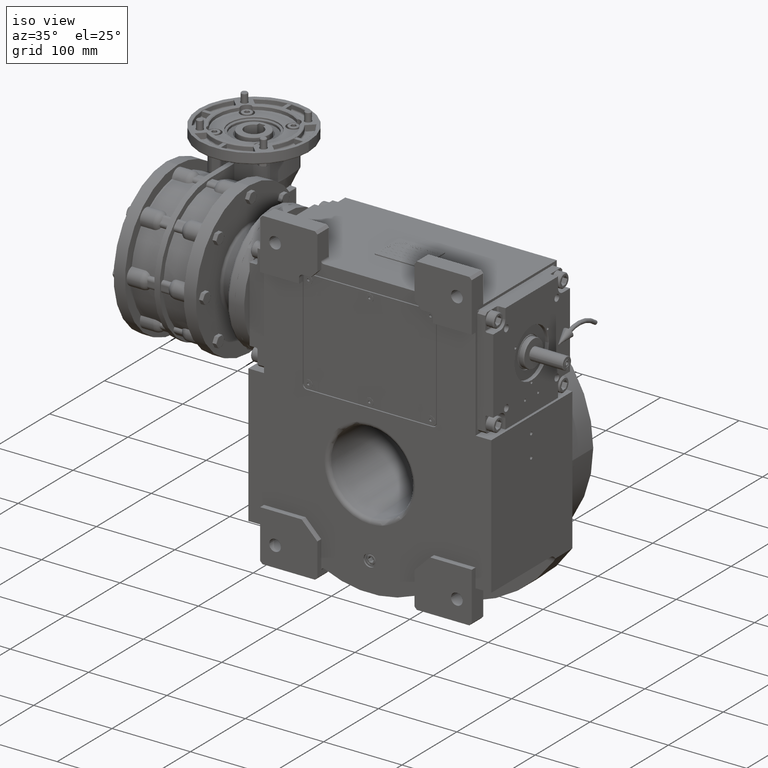
[diagram: clean part render]
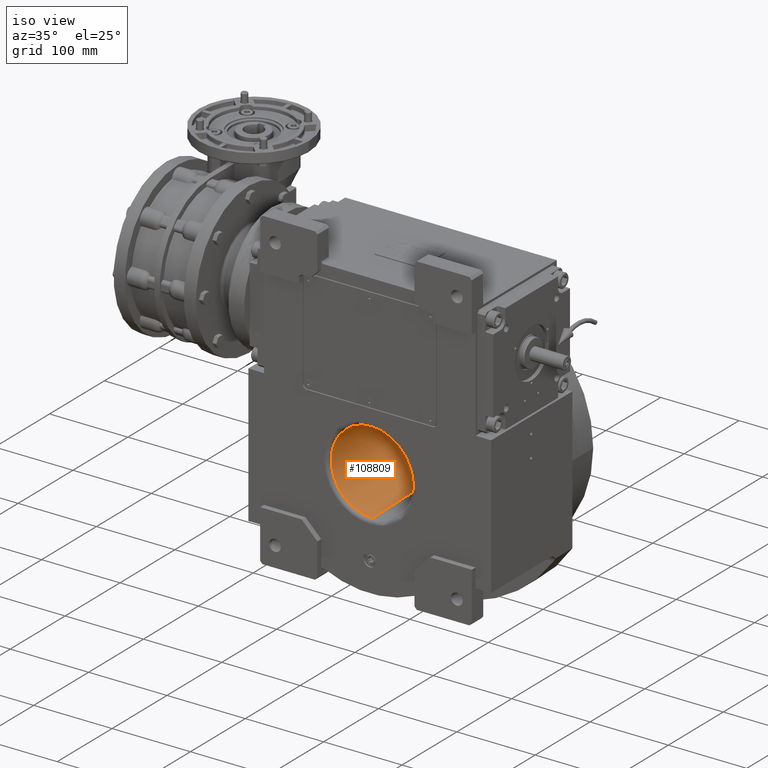
[diagram: same view with one face highlighted and labeled with its STEP entity id]
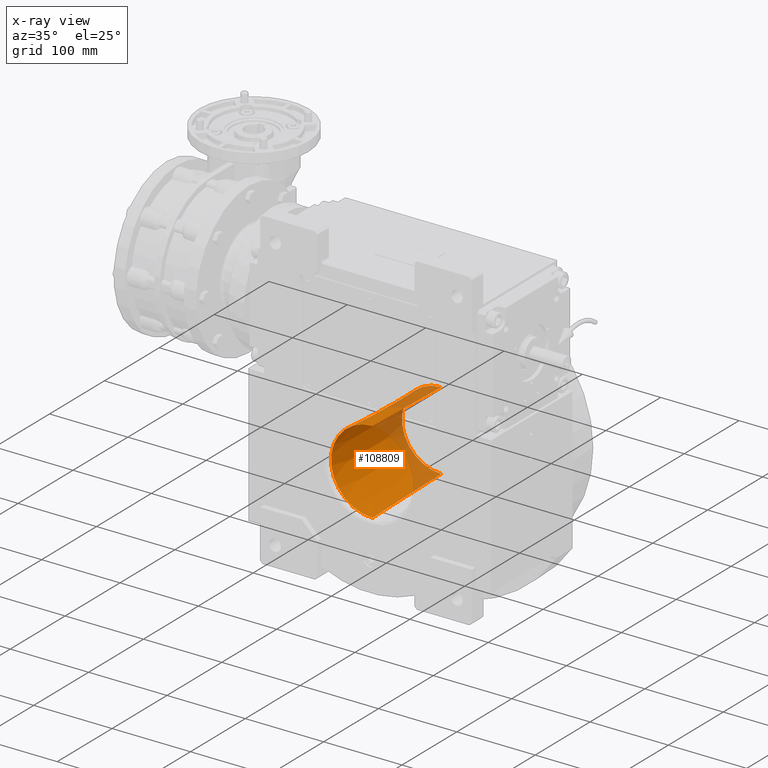
[diagram: x-ray of the same camera — body ghosted, the highlighted face saturated]
A machine part, iso view. The second image highlights one B-rep face of the part: STEP entity #108809.
The next image is the same camera in x-ray: the body ghosted, the highlighted face saturated — about 23% of this face is hidden behind the body in this view.
In plain terms, the highlighted conical surface has half-angle 1.292 deg.
Its self-contained STEP definition (entity closure, byte-faithful):
#3825 = DIRECTION ( 'NONE',  ( 5.523317474363207377E-18, 0.9997457016474147196, -0.02255065492437819882 ) ) ;
#8324 = EDGE_CURVE ( 'NONE', #94442, #89392, #13742, .T. ) ;
#13065 = VERTEX_POINT ( 'NONE', #97694 ) ;
#13742 = LINE ( 'NONE', #39963, #91871 ) ;
#16961 = ORIENTED_EDGE ( 'NONE', *, *, #8324, .F. ) ;
#20529 = DIRECTION ( 'NONE',  ( 0.000000000000000000, -1.000000000000000000, 1.836909530733564901E-16 ) ) ;
#23363 = VERTEX_POINT ( 'NONE', #104101 ) ;
#24548 = CIRCLE ( 'NONE', #113803, 52.88976140256119152 ) ;
#26067 = CARTESIAN_POINT ( 'NONE',  ( -3.366447261396295104E-11, -68.11275327462200835, 52.88976135205919604 ) ) ;
#28342 = VECTOR ( 'NONE', #31408, 1000.000000000000114 ) ;
#31408 = DIRECTION ( 'NONE',  ( -2.761658737181604074E-18, 0.9997457016474147196, 0.02255065492437784494 ) ) ;
#38424 = CARTESIAN_POINT ( 'NONE',  ( -5.647091595521470526E-12, 57.06765196477320501, 50.06614318876450653 ) ) ;
#38840 = DIRECTION ( 'NONE',  ( 1.997138262492154581E-08, 0.9999999999999997780, 6.123233971614108296E-17 ) ) ;
#39963 = CARTESIAN_POINT ( 'NONE',  ( -1.295425538949331941E-14, -68.11275327462179519, 52.88976135205919604 ) ) ;
#40750 = CARTESIAN_POINT ( 'NONE',  ( 6.477127694746659705E-15, -68.11275327462179519, -52.88976135205919604 ) ) ;
#42199 = EDGE_CURVE ( 'NONE', #23363, #89392, #102448, .T. ) ;
#42313 = CARTESIAN_POINT ( 'NONE',  ( 5.180066373969149615E-08, -68.11275406274060629, 4.736386318413870025E-15 ) ) ;
#44723 = AXIS2_PLACEMENT_3D ( 'NONE', #56346, #38840, #84303 ) ;
#48742 = AXIS2_PLACEMENT_3D ( 'NONE', #107966, #20529, #64815 ) ;
#48887 = LINE ( 'NONE', #40750, #28342 ) ;
#49892 = DIRECTION ( 'NONE',  ( 0.9882587347805640299, -2.055886669902873894E-08, -0.1527896368538074756 ) ) ;
#56346 = CARTESIAN_POINT ( 'NONE',  ( 3.083076751974459965E-08, 57.06765196477320501, -2.539431900768300017E-15 ) ) ;
#60721 = ORIENTED_EDGE ( 'NONE', *, *, #108089, .F. ) ;
#64815 = DIRECTION ( 'NONE',  ( 0.000000000000000000, 0.000000000000000000, 1.000000000000000000 ) ) ;
#71326 = EDGE_LOOP ( 'NONE', ( #95712, #100328, #16961, #60721 ) ) ;
#81148 = FACE_OUTER_BOUND ( 'NONE', #71326, .T. ) ;
#84303 = DIRECTION ( 'NONE',  ( 0.9817544653963818924, -1.960699399857663348E-08, -0.1901530164742704643 ) ) ;
#89392 = VERTEX_POINT ( 'NONE', #38424 ) ;
#89614 = EDGE_CURVE ( 'NONE', #13065, #23363, #48887, .T. ) ;
#91871 = VECTOR ( 'NONE', #3825, 1000.000000000000114 ) ;
#93441 = CONICAL_SURFACE ( 'NONE', #48742, 1.000000000000000000, 0.02255256665030591981 ) ;
#94442 = VERTEX_POINT ( 'NONE', #26067 ) ;
#95351 = DIRECTION ( 'NONE',  ( 2.310691404686464099E-08, 0.9999999999999997780, 1.490116125507999888E-08 ) ) ;
#95712 = ORIENTED_EDGE ( 'NONE', *, *, #89614, .T. ) ;
#97694 = CARTESIAN_POINT ( 'NONE',  ( 3.366158563859759886E-11, -68.11275327462200835, -52.88976135205919604 ) ) ;
#100328 = ORIENTED_EDGE ( 'NONE', *, *, #42199, .T. ) ;
#102448 = CIRCLE ( 'NONE', #44723, 50.06614321695211345 ) ;
#104101 = CARTESIAN_POINT ( 'NONE',  ( 5.632922360699180090E-12, 57.06765196477320501, -50.06614318876450653 ) ) ;
#107966 = CARTESIAN_POINT ( 'NONE',  ( 0.000000000000000000, 2232.333333333314840, -3.962844522719785252E-13 ) ) ;
#108089 = EDGE_CURVE ( 'NONE', #13065, #94442, #24548, .T. ) ;
#108809 = ADVANCED_FACE ( 'NONE', ( #81148 ), #93441, .F. ) ;
#113803 = AXIS2_PLACEMENT_3D ( 'NONE', #42313, #95351, #49892 ) ;